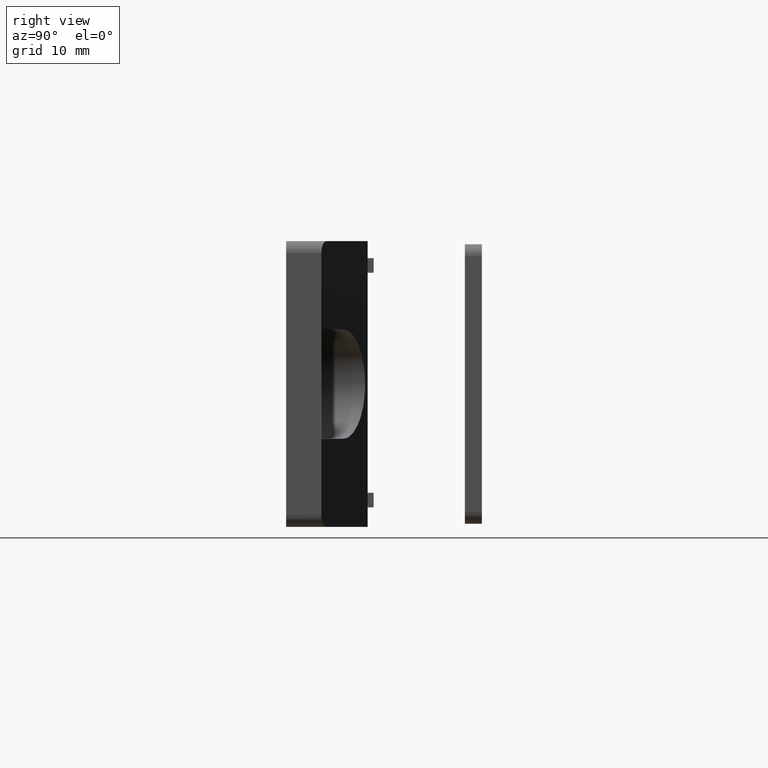
[diagram: clean part render]
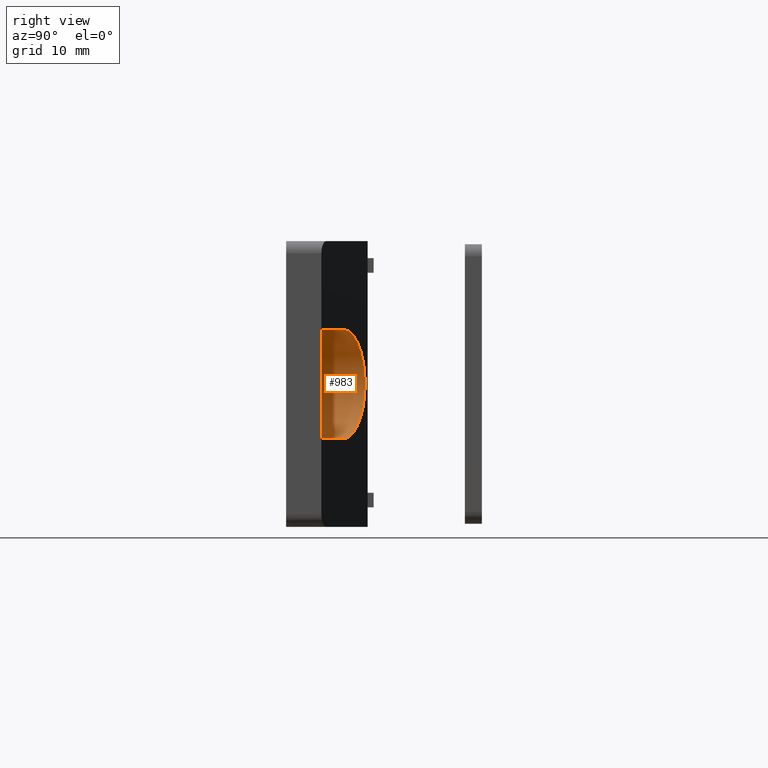
[diagram: same view with one face highlighted and labeled with its STEP entity id]
A machine part, right view. The second image highlights one B-rep face of the part: STEP entity #983.
In plain terms, the highlighted cylindrical surface (partial cylindrical patch) has radius 4.5 mm, axis along (0, -1, 0).
Its self-contained STEP definition (entity closure, byte-faithful):
#117=FACE_OUTER_BOUND('',#181,.T.);
#181=EDGE_LOOP('',(#769,#770,#771,#772));
#237=ELLIPSE('',#1062,4.84664832642105,4.5);
#270=LINE('',#1515,#372);
#271=LINE('',#1519,#373);
#372=VECTOR('',#1221,1.8);
#373=VECTOR('',#1226,1.8);
#451=CIRCLE('',#1059,4.5);
#498=VERTEX_POINT('',#1507);
#499=VERTEX_POINT('',#1509);
#500=VERTEX_POINT('',#1513);
#501=VERTEX_POINT('',#1517);
#600=EDGE_CURVE('',#499,#498,#451,.T.);
#603=EDGE_CURVE('',#500,#499,#270,.T.);
#604=EDGE_CURVE('',#500,#501,#237,.T.);
#605=EDGE_CURVE('',#501,#498,#271,.T.);
#769=ORIENTED_EDGE('',*,*,#604,.F.);
#770=ORIENTED_EDGE('',*,*,#603,.T.);
#771=ORIENTED_EDGE('',*,*,#600,.T.);
#772=ORIENTED_EDGE('',*,*,#605,.F.);
#959=CYLINDRICAL_SURFACE('',#1061,4.5);
#983=ADVANCED_FACE('',(#117),#959,.F.);
#1059=AXIS2_PLACEMENT_3D('',#1510,#1215,#1216);
#1061=AXIS2_PLACEMENT_3D('',#1516,#1222,#1223);
#1062=AXIS2_PLACEMENT_3D('',#1518,#1224,#1225);
#1215=DIRECTION('center_axis',(0.,0.,-1.));
#1216=DIRECTION('ref_axis',(0.,1.,0.));
#1221=DIRECTION('',(0.,0.,-1.));
#1222=DIRECTION('center_axis',(0.,0.,-1.));
#1223=DIRECTION('ref_axis',(0.,1.,0.));
#1224=DIRECTION('center_axis',(-0.371390676354104,0.,-0.928476690885259));
#1225=DIRECTION('ref_axis',(0.928476690885259,0.,-0.371390676354104));
#1226=DIRECTION('',(0.,0.,-1.));
#1507=CARTESIAN_POINT('',(22.,4.5,-3.8));
#1509=CARTESIAN_POINT('',(22.,-4.5,-3.8));
#1510=CARTESIAN_POINT('Origin',(22.,0.,-3.8));
#1513=CARTESIAN_POINT('',(22.,-4.5,-2.));
#1515=CARTESIAN_POINT('',(22.,-4.5,0.));
#1516=CARTESIAN_POINT('Origin',(22.,0.,0.));
#1517=CARTESIAN_POINT('',(22.,4.5,-2.));
#1518=CARTESIAN_POINT('Origin',(22.,0.,-2.));
#1519=CARTESIAN_POINT('',(22.,4.5,0.));